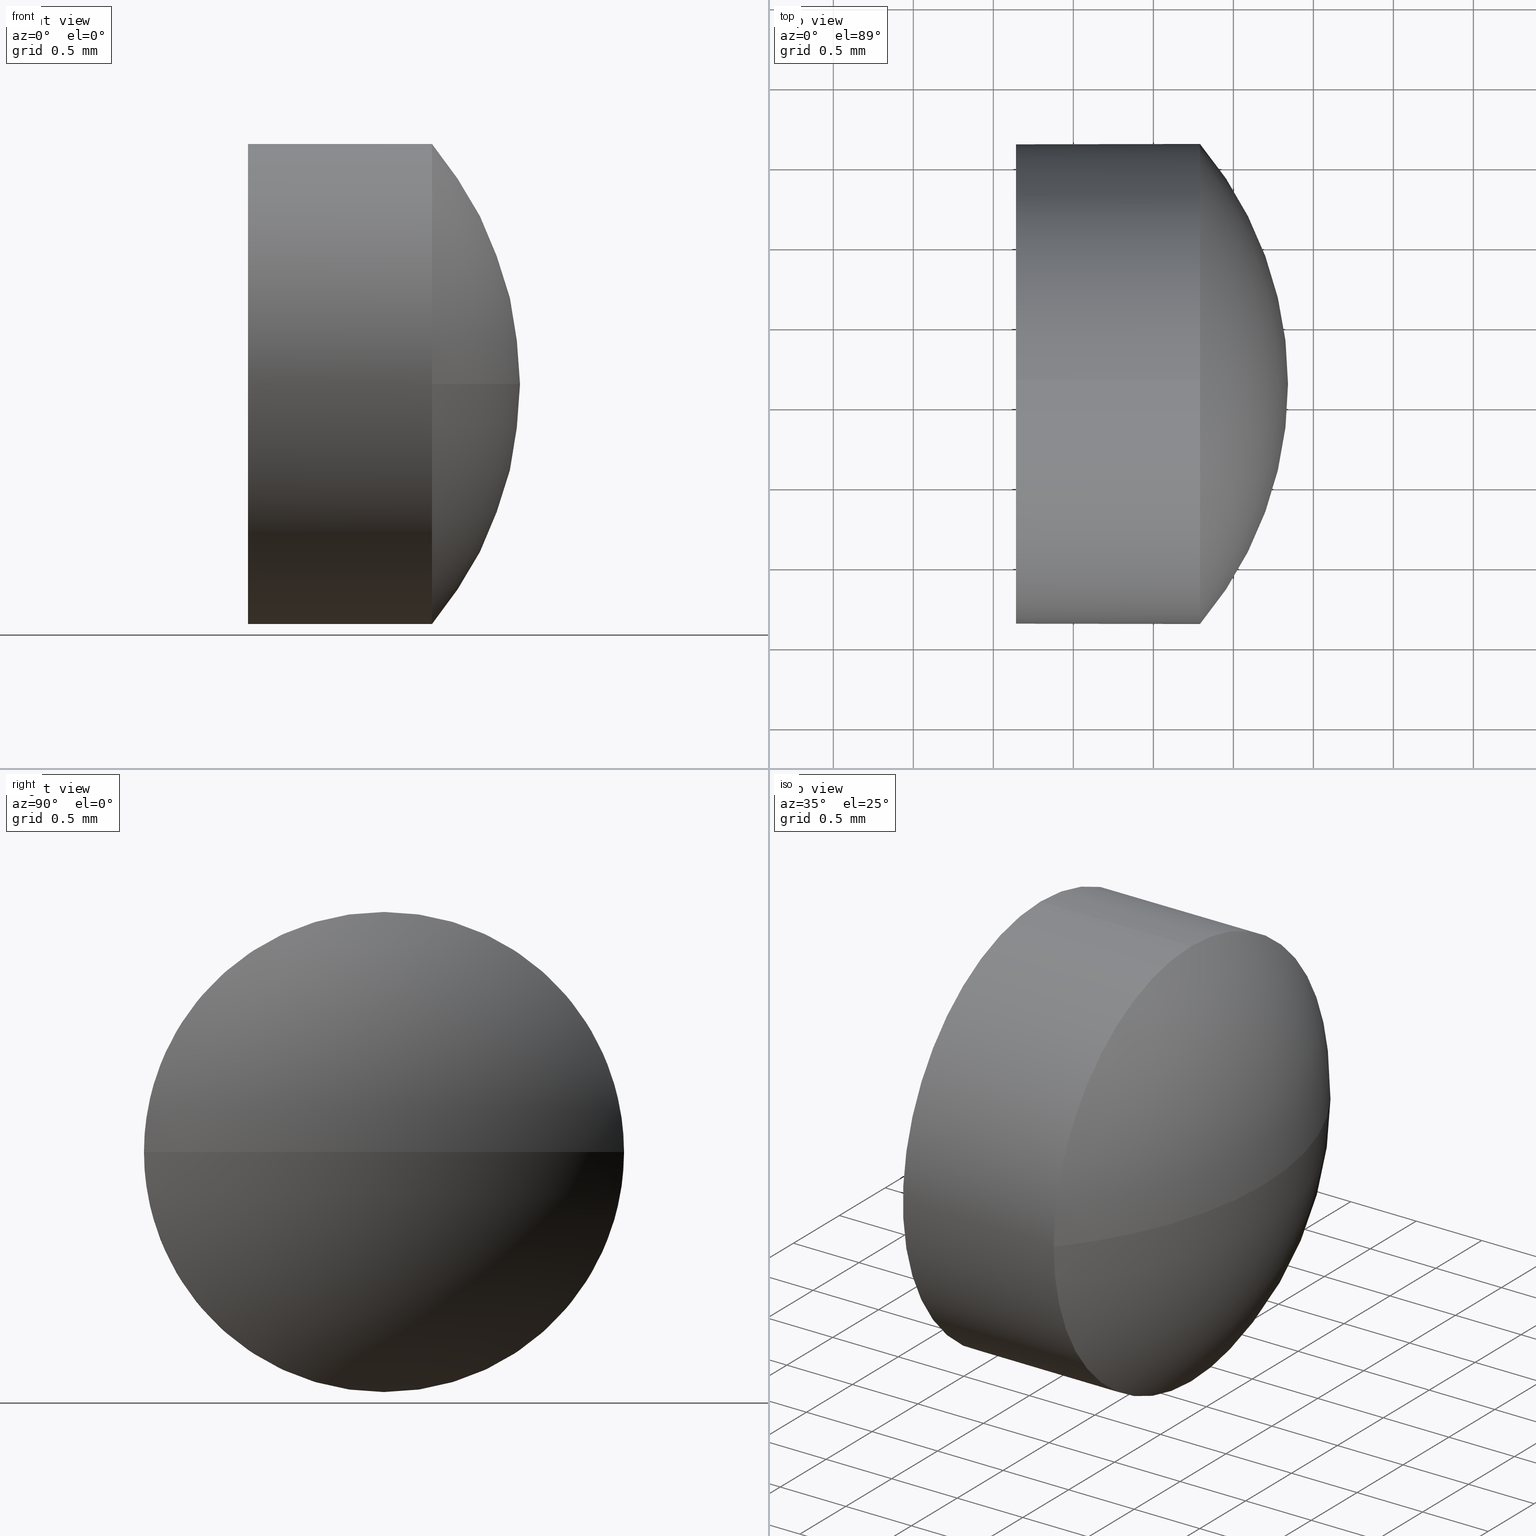
[diagram: canonical four-view strip — front | top / right | iso, engineering-drawing reading convention]
A machine part, canonical four-view strip (front | top / right | iso — engineering-drawing reading convention). The complete STEP part file that produces these views, byte-faithful:
ISO-10303-21;
HEADER;
FILE_DESCRIPTION (( 'STEP AP214' ),
    '1' );
FILE_NAME ('100172.STEP',
    '2019-05-17T06:56:55',
    ( '' ),
    ( '' ),
    'SwSTEP 2.0',
    'SolidWorks 2016',
    '' );
FILE_SCHEMA (( 'AUTOMOTIVE_DESIGN' ));
ENDSEC;

DATA;
#1 = EDGE_CURVE ( 'NONE', #60, #130, #117, .T. ) ;
#2 = FACE_OUTER_BOUND ( 'NONE', #150, .T. ) ;
#3 = DIRECTION ( 'NONE',  ( 0.0000000000000000000, 0.0000000000000000000, 1.000000000000000000 ) ) ;
#4 = CARTESIAN_POINT ( 'NONE',  ( 657.5211266645158000, -16.36571679359242600, 0.0000000000000000000 ) ) ;
#5 = AXIS2_PLACEMENT_3D ( 'NONE', #141, #177, #108 ) ;
#6 = ADVANCED_FACE ( 'NONE', ( #2 ), #182, .T. ) ;
#7 =( LENGTH_UNIT ( ) NAMED_UNIT ( * ) SI_UNIT ( .MILLI., .METRE. ) );
#8 = ADVANCED_FACE ( 'NONE', ( #15 ), #142, .T. ) ;
#9 = SPHERICAL_SURFACE ( 'NONE', #28, 2.320454545454576900 ) ;
#10 =( NAMED_UNIT ( * ) SI_UNIT ( $, .STERADIAN. ) SOLID_ANGLE_UNIT ( ) );
#11 = UNCERTAINTY_MEASURE_WITH_UNIT (LENGTH_MEASURE( 1.000000000000000100E-005 ), #7, 'distance_accuracy_value', 'NONE');
#12 = EDGE_CURVE ( 'NONE', #146, #143, #98, .T. ) ;
#13 = APPLICATION_CONTEXT ( 'automotive_design' ) ;
#14 = LINE ( 'NONE', #21, #79 ) ;
#15 = FACE_OUTER_BOUND ( 'NONE', #134, .T. ) ;
#16 = AXIS2_PLACEMENT_3D ( 'NONE', #86, #154, #159 ) ;
#17 = EDGE_CURVE ( 'NONE', #130, #146, #69, .T. ) ;
#18 = ORIENTED_EDGE ( 'NONE', *, *, #1, .T. ) ;
#19 = FILL_AREA_STYLE_COLOUR ( '', #120 ) ;
#20 = SURFACE_STYLE_USAGE ( .BOTH. , #180 ) ;
#21 = CARTESIAN_POINT ( 'NONE',  ( 657.7378520608252800, -16.36571679359241200, -1.499999999999999600 ) ) ;
#22 =( LENGTH_UNIT ( ) NAMED_UNIT ( * ) SI_UNIT ( .MILLI., .METRE. ) );
#23 = PRODUCT ( '100172', '100172', '', ( #123 ) ) ;
#24 = ORIENTED_EDGE ( 'NONE', *, *, #78, .F. ) ;
#25 = DIRECTION ( 'NONE',  ( -1.000000000000000000, -0.0000000000000000000, -0.0000000000000000000 ) ) ;
#26 = CARTESIAN_POINT ( 'NONE',  ( 657.5211266645158000, -16.36571679359242600, 0.0000000000000000000 ) ) ;
#27 = PRESENTATION_LAYER_ASSIGNMENT (  '', '', ( #132 ) ) ;
#28 = AXIS2_PLACEMENT_3D ( 'NONE', #171, #109, #125 ) ;
#29 = DIRECTION ( 'NONE',  ( 0.0000000000000000000, 0.0000000000000000000, 1.000000000000000000 ) ) ;
#30 = DIRECTION ( 'NONE',  ( -1.000000000000000000, -0.0000000000000000000, -0.0000000000000000000 ) ) ;
#31 = MECHANICAL_DESIGN_GEOMETRIC_PRESENTATION_REPRESENTATION (  '', ( #132 ), #84 ) ;
#32 = DIRECTION ( 'NONE',  ( 0.0000000000000000000, 1.000000000000000000, 0.0000000000000000000 ) ) ;
#33 = MANIFOLD_SOLID_BREP ( '��ת1', #128 ) ;
#34 = DIRECTION ( 'NONE',  ( 0.0000000000000000000, 0.0000000000000000000, -1.000000000000000000 ) ) ;
#35 = CYLINDRICAL_SURFACE ( 'NONE', #151, 1.499999999999999600 ) ;
#36 = ORIENTED_EDGE ( 'NONE', *, *, #54, .T. ) ;
#37 = CARTESIAN_POINT ( 'NONE',  ( 657.7378520608252800, -16.36571679359241200, 1.499999999999999600 ) ) ;
#38 = MECHANICAL_DESIGN_GEOMETRIC_PRESENTATION_REPRESENTATION (  '', ( #116 ), #168 ) ;
#39 = DIRECTION ( 'NONE',  ( 0.0000000000000000000, 1.000000000000000000, 1.224646799147353200E-016 ) ) ;
#40 = FILL_AREA_STYLE_COLOUR ( '', #105 ) ;
#41 = SURFACE_STYLE_FILL_AREA ( #140 ) ;
#42 = AXIS2_PLACEMENT_3D ( 'NONE', #174, #173, #34 ) ;
#43 = CIRCLE ( 'NONE', #50, 2.320454545454597700 ) ;
#44 =( GEOMETRIC_REPRESENTATION_CONTEXT ( 3 ) GLOBAL_UNCERTAINTY_ASSIGNED_CONTEXT ( ( #81 ) ) GLOBAL_UNIT_ASSIGNED_CONTEXT ( ( #51, #65, #10 ) ) REPRESENTATION_CONTEXT ( 'NONE', 'WORKASPACE' ) );
#45 = CIRCLE ( 'NONE', #148, 1.499999999999999600 ) ;
#46 = AXIS2_PLACEMENT_3D ( 'NONE', #73, #107, #156 ) ;
#47 = CARTESIAN_POINT ( 'NONE',  ( 659.2915812099703300, -16.36571679359241200, 0.0000000000000000000 ) ) ;
#48 = CARTESIAN_POINT ( 'NONE',  ( 657.7378520608252800, -16.36571679359241200, 0.0000000000000000000 ) ) ;
#49 = CARTESIAN_POINT ( 'NONE',  ( 659.2915812099703300, -16.36571679359241200, 1.499999999999999600 ) ) ;
#50 = AXIS2_PLACEMENT_3D ( 'NONE', #26, #74, #122 ) ;
#51 =( LENGTH_UNIT ( ) NAMED_UNIT ( * ) SI_UNIT ( .MILLI., .METRE. ) );
#52 =( NAMED_UNIT ( * ) SI_UNIT ( $, .STERADIAN. ) SOLID_ANGLE_UNIT ( ) );
#53 = VERTEX_POINT ( 'NONE', #103 ) ;
#54 = EDGE_CURVE ( 'NONE', #83, #53, #71, .T. ) ;
#55 = FACE_OUTER_BOUND ( 'NONE', #135, .T. ) ;
#56 = ORIENTED_EDGE ( 'NONE', *, *, #1, .F. ) ;
#57 = EDGE_CURVE ( 'NONE', #143, #60, #90, .T. ) ;
#58 = ORIENTED_EDGE ( 'NONE', *, *, #78, .T. ) ;
#59 = PRESENTATION_STYLE_ASSIGNMENT (( #20 ) ) ;
#60 = VERTEX_POINT ( 'NONE', #49 ) ;
#61 = DIRECTION ( 'NONE',  ( 0.0000000000000000000, 0.0000000000000000000, 1.000000000000000000 ) ) ;
#62 =( NAMED_UNIT ( * ) SI_UNIT ( $, .STERADIAN. ) SOLID_ANGLE_UNIT ( ) );
#63 = VECTOR ( 'NONE', #25, 1000.000000000000000 ) ;
#64 = CARTESIAN_POINT ( 'NONE',  ( 659.2915812099703300, -14.86571679359239800, 0.0000000000000000000 ) ) ;
#65 =( NAMED_UNIT ( * ) PLANE_ANGLE_UNIT ( ) SI_UNIT ( $, .RADIAN. ) );
#66 = AXIS2_PLACEMENT_3D ( 'NONE', #4, #87, #32 ) ;
#67 = ORIENTED_EDGE ( 'NONE', *, *, #175, .T. ) ;
#68 = ORIENTED_EDGE ( 'NONE', *, *, #101, .F. ) ;
#69 = CIRCLE ( 'NONE', #179, 1.499999999999999600 ) ;
#70 = ORIENTED_EDGE ( 'NONE', *, *, #17, .F. ) ;
#71 = CIRCLE ( 'NONE', #46, 1.499999999999999600 ) ;
#72 = CARTESIAN_POINT ( 'NONE',  ( 657.7378520608252800, -16.36571679359241200, 0.0000000000000000000 ) ) ;
#73 = CARTESIAN_POINT ( 'NONE',  ( 658.1415812099703500, -16.36571679359241200, 0.0000000000000000000 ) ) ;
#74 = DIRECTION ( 'NONE',  ( -0.0000000000000000000, 0.0000000000000000000, 1.000000000000000000 ) ) ;
#75 = CARTESIAN_POINT ( 'NONE',  ( 659.2915812099703300, -17.86571679359244100, -1.836970198721050400E-016 ) ) ;
#76 = APPLICATION_PROTOCOL_DEFINITION ( 'draft international standard', 'automotive_design', 1998, #13 ) ;
#77 = ORIENTED_EDGE ( 'NONE', *, *, #118, .F. ) ;
#78 = EDGE_CURVE ( 'NONE', #146, #83, #14, .T. ) ;
#79 = VECTOR ( 'NONE', #30, 1000.000000000000000 ) ;
#80 = EDGE_LOOP ( 'NONE', ( #24, #139, #172, #106, #131 ) ) ;
#81 = UNCERTAINTY_MEASURE_WITH_UNIT (LENGTH_MEASURE( 1.000000000000000100E-005 ), #51, 'distance_accuracy_value', 'NONE');
#82 = ADVANCED_FACE ( 'NONE', ( #157 ), #35, .T. ) ;
#83 = VERTEX_POINT ( 'NONE', #137 ) ;
#84 =( GEOMETRIC_REPRESENTATION_CONTEXT ( 3 ) GLOBAL_UNCERTAINTY_ASSIGNED_CONTEXT ( ( #153 ) ) GLOBAL_UNIT_ASSIGNED_CONTEXT ( ( #22, #155, #62 ) ) REPRESENTATION_CONTEXT ( 'NONE', 'WORKASPACE' ) );
#85 = PRODUCT_DEFINITION_CONTEXT ( 'detailed design', #13, 'design' ) ;
#86 = CARTESIAN_POINT ( 'NONE',  ( 659.2915812099703300, -16.36571679359241200, 0.0000000000000000000 ) ) ;
#87 = DIRECTION ( 'NONE',  ( -0.0000000000000000000, 0.0000000000000000000, -1.000000000000000000 ) ) ;
#88 = EDGE_LOOP ( 'NONE', ( #152, #67, #96, #70 ) ) ;
#89 = AXIS2_PLACEMENT_3D ( 'NONE', #133, #100, #61 ) ;
#90 = CIRCLE ( 'NONE', #89, 1.499999999999999600 ) ;
#91 = SURFACE_SIDE_STYLE ('',( #41 ) ) ;
#92 = DIRECTION ( 'NONE',  ( -1.000000000000000000, -0.0000000000000000000, -0.0000000000000000000 ) ) ;
#93 = DIRECTION ( 'NONE',  ( 0.0000000000000000000, 0.0000000000000000000, 1.000000000000000000 ) ) ;
#94 = APPLICATION_PROTOCOL_DEFINITION ( 'draft international standard', 'automotive_design', 1998, #160 ) ;
#95 = AXIS2_PLACEMENT_3D ( 'NONE', #121, #104, #3 ) ;
#96 = ORIENTED_EDGE ( 'NONE', *, *, #12, .F. ) ;
#97 = ADVANCED_FACE ( 'NONE', ( #149 ), #9, .T. ) ;
#98 = CIRCLE ( 'NONE', #95, 1.499999999999999600 ) ;
#99 = ORIENTED_EDGE ( 'NONE', *, *, #101, .T. ) ;
#100 = DIRECTION ( 'NONE',  ( -1.000000000000000000, -0.0000000000000000000, -0.0000000000000000000 ) ) ;
#101 = EDGE_CURVE ( 'NONE', #53, #83, #45, .T. ) ;
#102 = FILL_AREA_STYLE ('',( #19 ) ) ;
#103 = CARTESIAN_POINT ( 'NONE',  ( 658.1415812099703500, -16.36571679359241200, 1.499999999999999600 ) ) ;
#104 = DIRECTION ( 'NONE',  ( -1.000000000000000000, -0.0000000000000000000, -0.0000000000000000000 ) ) ;
#105 = COLOUR_RGB ( '',1.000000000000000000, 1.000000000000000000, 1.000000000000000000 ) ;
#106 = ORIENTED_EDGE ( 'NONE', *, *, #118, .T. ) ;
#107 = DIRECTION ( 'NONE',  ( -1.000000000000000000, -0.0000000000000000000, -0.0000000000000000000 ) ) ;
#108 = DIRECTION ( 'NONE',  ( 1.000000000000000000, 0.0000000000000000000, 0.0000000000000000000 ) ) ;
#109 = DIRECTION ( 'NONE',  ( -0.0000000000000000000, 0.0000000000000000000, -1.000000000000000000 ) ) ;
#110 = PRODUCT_DEFINITION ( 'δ֪', '', #147, #85 ) ;
#111 = PLANE ( 'NONE',  #42 ) ;
#112 = SURFACE_STYLE_FILL_AREA ( #102 ) ;
#113 = PRESENTATION_LAYER_ASSIGNMENT (  '', '', ( #116 ) ) ;
#114 = PRESENTATION_STYLE_ASSIGNMENT (( #138 ) ) ;
#115 = PRODUCT_DEFINITION_SHAPE ( 'NONE', 'NONE',  #110 ) ;
#116 = STYLED_ITEM ( 'NONE', ( #114 ), #127 ) ;
#117 = CIRCLE ( 'NONE', #16, 1.499999999999999600 ) ;
#118 = EDGE_CURVE ( 'NONE', #60, #53, #145, .T. ) ;
#119 = DIRECTION ( 'NONE',  ( -1.000000000000000000, -0.0000000000000000000, -0.0000000000000000000 ) ) ;
#120 = COLOUR_RGB ( '',1.000000000000000000, 1.000000000000000000, 1.000000000000000000 ) ;
#121 = CARTESIAN_POINT ( 'NONE',  ( 659.2915812099703300, -16.36571679359241200, 0.0000000000000000000 ) ) ;
#122 = DIRECTION ( 'NONE',  ( 1.000000000000000000, 0.0000000000000000000, 0.0000000000000000000 ) ) ;
#123 = PRODUCT_CONTEXT ( 'NONE', #160, 'mechanical' ) ;
#124 =( NAMED_UNIT ( * ) PLANE_ANGLE_UNIT ( ) SI_UNIT ( $, .RADIAN. ) );
#125 = DIRECTION ( 'NONE',  ( 0.0000000000000000000, 1.000000000000000000, 0.0000000000000000000 ) ) ;
#126 = CIRCLE ( 'NONE', #161, 2.320454545454576900 ) ;
#127 = ADVANCED_BREP_SHAPE_REPRESENTATION ( '100172', ( #33, #5 ), #44 ) ;
#128 = CLOSED_SHELL ( 'NONE', ( #6, #97, #8, #82, #158 ) ) ;
#129 = SHAPE_DEFINITION_REPRESENTATION ( #115, #127 ) ;
#130 = VERTEX_POINT ( 'NONE', #64 ) ;
#131 = ORIENTED_EDGE ( 'NONE', *, *, #54, .F. ) ;
#132 = STYLED_ITEM ( 'NONE', ( #59 ), #33 ) ;
#133 = CARTESIAN_POINT ( 'NONE',  ( 659.2915812099703300, -16.36571679359241200, 0.0000000000000000000 ) ) ;
#134 = EDGE_LOOP ( 'NONE', ( #185, #170, #56, #164 ) ) ;
#135 = EDGE_LOOP ( 'NONE', ( #99, #36 ) ) ;
#136 = CARTESIAN_POINT ( 'NONE',  ( 657.5211266645158000, -16.36571679359242600, 0.0000000000000000000 ) ) ;
#137 = CARTESIAN_POINT ( 'NONE',  ( 658.1415812099703500, -16.36571679359241200, -1.499999999999999600 ) ) ;
#138 = SURFACE_STYLE_USAGE ( .BOTH. , #91 ) ;
#139 = ORIENTED_EDGE ( 'NONE', *, *, #12, .T. ) ;
#140 = FILL_AREA_STYLE ('',( #40 ) ) ;
#141 = CARTESIAN_POINT ( 'NONE',  ( 0.0000000000000000000, 0.0000000000000000000, 0.0000000000000000000 ) ) ;
#142 = SPHERICAL_SURFACE ( 'NONE', #66, 2.320454545454576900 ) ;
#143 = VERTEX_POINT ( 'NONE', #75 ) ;
#144 = AXIS2_PLACEMENT_3D ( 'NONE', #72, #169, #181 ) ;
#145 = LINE ( 'NONE', #37, #63 ) ;
#146 = VERTEX_POINT ( 'NONE', #165 ) ;
#147 = PRODUCT_DEFINITION_FORMATION_WITH_SPECIFIED_SOURCE ( '�κ�', '', #23, .NOT_KNOWN. ) ;
#148 = AXIS2_PLACEMENT_3D ( 'NONE', #176, #92, #93 ) ;
#149 = FACE_OUTER_BOUND ( 'NONE', #88, .T. ) ;
#150 = EDGE_LOOP ( 'NONE', ( #178, #58, #68, #77, #18 ) ) ;
#151 = AXIS2_PLACEMENT_3D ( 'NONE', #48, #166, #162 ) ;
#152 = ORIENTED_EDGE ( 'NONE', *, *, #167, .F. ) ;
#153 = UNCERTAINTY_MEASURE_WITH_UNIT (LENGTH_MEASURE( 1.000000000000000100E-005 ), #22, 'distance_accuracy_value', 'NONE');
#154 = DIRECTION ( 'NONE',  ( -1.000000000000000000, -0.0000000000000000000, -0.0000000000000000000 ) ) ;
#155 =( NAMED_UNIT ( * ) PLANE_ANGLE_UNIT ( ) SI_UNIT ( $, .RADIAN. ) );
#156 = DIRECTION ( 'NONE',  ( 0.0000000000000000000, 0.0000000000000000000, 1.000000000000000000 ) ) ;
#157 = FACE_OUTER_BOUND ( 'NONE', #80, .T. ) ;
#158 = ADVANCED_FACE ( 'NONE', ( #55 ), #111, .F. ) ;
#159 = DIRECTION ( 'NONE',  ( 0.0000000000000000000, 0.0000000000000000000, 1.000000000000000000 ) ) ;
#160 = APPLICATION_CONTEXT ( 'automotive_design' ) ;
#161 = AXIS2_PLACEMENT_3D ( 'NONE', #136, #184, #39 ) ;
#162 = DIRECTION ( 'NONE',  ( 0.0000000000000000000, 0.0000000000000000000, 1.000000000000000000 ) ) ;
#163 = CARTESIAN_POINT ( 'NONE',  ( 659.8415812099704000, -16.36571679359242600, 0.0000000000000000000 ) ) ;
#164 = ORIENTED_EDGE ( 'NONE', *, *, #57, .F. ) ;
#165 = CARTESIAN_POINT ( 'NONE',  ( 659.2915812099703300, -16.36571679359241200, -1.499999999999999600 ) ) ;
#166 = DIRECTION ( 'NONE',  ( -1.000000000000000000, -0.0000000000000000000, -0.0000000000000000000 ) ) ;
#167 = EDGE_CURVE ( 'NONE', #186, #130, #43, .T. ) ;
#168 =( GEOMETRIC_REPRESENTATION_CONTEXT ( 3 ) GLOBAL_UNCERTAINTY_ASSIGNED_CONTEXT ( ( #11 ) ) GLOBAL_UNIT_ASSIGNED_CONTEXT ( ( #7, #124, #52 ) ) REPRESENTATION_CONTEXT ( 'NONE', 'WORKASPACE' ) );
#169 = DIRECTION ( 'NONE',  ( -1.000000000000000000, -0.0000000000000000000, -0.0000000000000000000 ) ) ;
#170 = ORIENTED_EDGE ( 'NONE', *, *, #167, .T. ) ;
#171 = CARTESIAN_POINT ( 'NONE',  ( 657.5211266645158000, -16.36571679359242600, 0.0000000000000000000 ) ) ;
#172 = ORIENTED_EDGE ( 'NONE', *, *, #57, .T. ) ;
#173 = DIRECTION ( 'NONE',  ( 1.000000000000000000, 0.0000000000000000000, 0.0000000000000000000 ) ) ;
#174 = CARTESIAN_POINT ( 'NONE',  ( 658.1415812099703500, -16.36571679359241200, 0.0000000000000000000 ) ) ;
#175 = EDGE_CURVE ( 'NONE', #186, #143, #126, .T. ) ;
#176 = CARTESIAN_POINT ( 'NONE',  ( 658.1415812099703500, -16.36571679359241200, 0.0000000000000000000 ) ) ;
#177 = DIRECTION ( 'NONE',  ( 0.0000000000000000000, 0.0000000000000000000, 1.000000000000000000 ) ) ;
#178 = ORIENTED_EDGE ( 'NONE', *, *, #17, .T. ) ;
#179 = AXIS2_PLACEMENT_3D ( 'NONE', #47, #119, #29 ) ;
#180 = SURFACE_SIDE_STYLE ('',( #112 ) ) ;
#181 = DIRECTION ( 'NONE',  ( 0.0000000000000000000, 0.0000000000000000000, 1.000000000000000000 ) ) ;
#182 = CYLINDRICAL_SURFACE ( 'NONE', #144, 1.499999999999999600 ) ;
#183 = PRODUCT_RELATED_PRODUCT_CATEGORY ( 'part', '', ( #23 ) ) ;
#184 = DIRECTION ( 'NONE',  ( 0.0000000000000000000, 1.224646799147353200E-016, -1.000000000000000000 ) ) ;
#185 = ORIENTED_EDGE ( 'NONE', *, *, #175, .F. ) ;
#186 = VERTEX_POINT ( 'NONE', #163 ) ;
ENDSEC;
END-ISO-10303-21;
